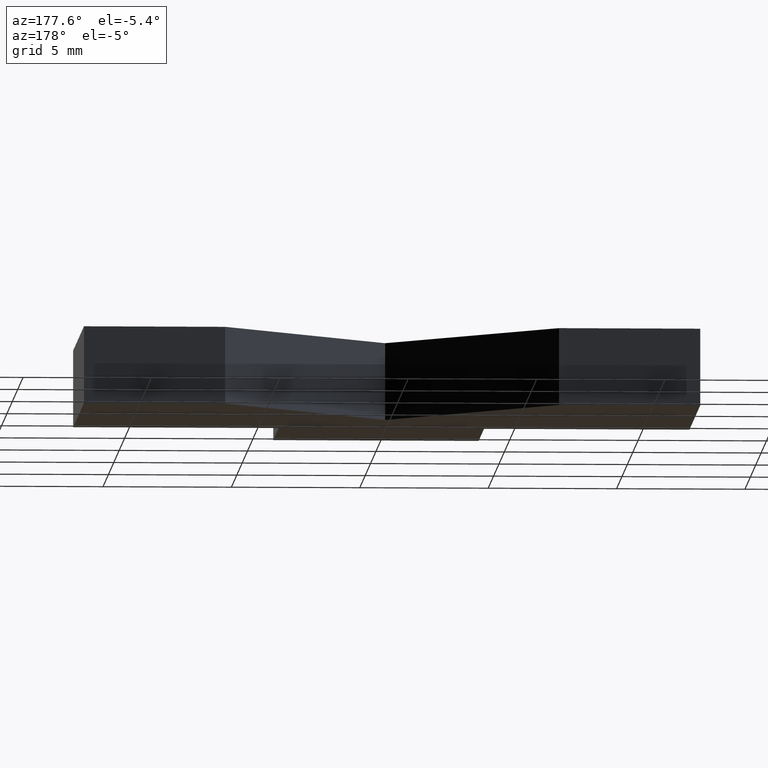
[diagram: clean part render]
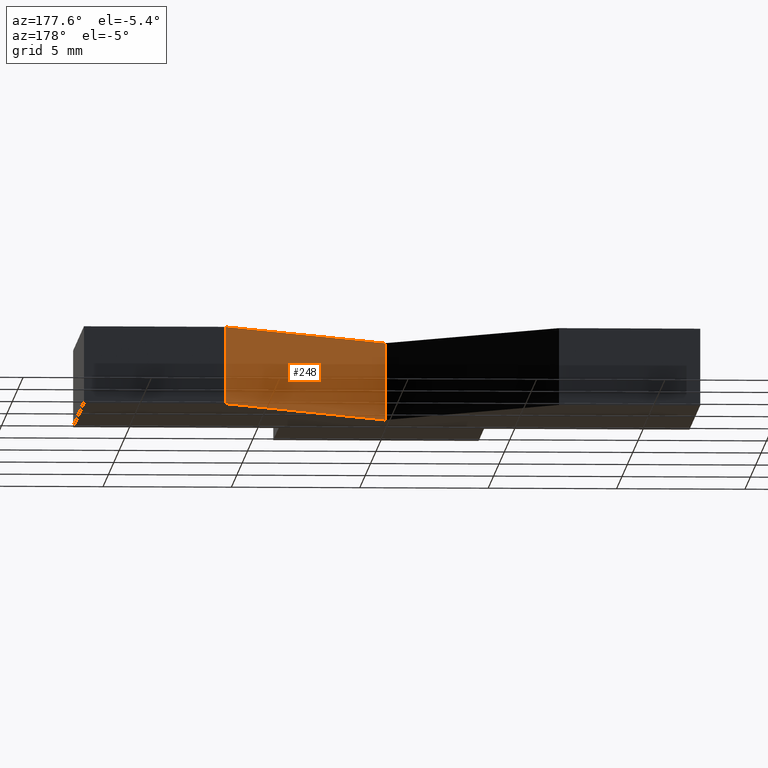
[diagram: same view with one face highlighted and labeled with its STEP entity id]
A machine part, auxiliary view. The second image highlights one B-rep face of the part: STEP entity #248.
In plain terms, the highlighted planar face has unit normal (-0.7071, 0.7071, 0).
Its self-contained STEP definition (entity closure, byte-faithful):
#22=FACE_OUTER_BOUND('',#35,.T.);
#35=EDGE_LOOP('',(#194,#195,#196,#197));
#48=LINE('',#368,#81);
#63=LINE('',#397,#96);
#64=LINE('',#400,#97);
#65=LINE('',#401,#98);
#81=VECTOR('',#301,10.);
#96=VECTOR('',#326,10.);
#97=VECTOR('',#329,10.);
#98=VECTOR('',#330,10.);
#114=VERTEX_POINT('',#365);
#115=VERTEX_POINT('',#367);
#124=VERTEX_POINT('',#395);
#125=VERTEX_POINT('',#399);
#136=EDGE_CURVE('',#115,#114,#48,.T.);
#151=EDGE_CURVE('',#124,#114,#63,.T.);
#152=EDGE_CURVE('',#124,#125,#64,.T.);
#153=EDGE_CURVE('',#125,#115,#65,.T.);
#194=ORIENTED_EDGE('',*,*,#152,.T.);
#195=ORIENTED_EDGE('',*,*,#153,.T.);
#196=ORIENTED_EDGE('',*,*,#136,.T.);
#197=ORIENTED_EDGE('',*,*,#151,.F.);
#235=PLANE('',#284);
#248=ADVANCED_FACE('',(#22),#235,.T.);
#284=AXIS2_PLACEMENT_3D('',#398,#327,#328);
#301=DIRECTION('',(-0.707106781186548,-0.707106781186547,0.));
#326=DIRECTION('',(0.,0.,-1.));
#327=DIRECTION('center_axis',(-0.707106781186547,0.707106781186548,0.));
#328=DIRECTION('ref_axis',(0.,0.,1.));
#329=DIRECTION('',(0.707106781186548,0.707106781186547,0.));
#330=DIRECTION('',(0.,0.,-1.));
#365=CARTESIAN_POINT('',(-1.11022302462516E-15,8.5,-1.5));
#367=CARTESIAN_POINT('',(6.5,15.,-1.5));
#368=CARTESIAN_POINT('',(-1.11022302462516E-15,8.5,-1.5));
#395=CARTESIAN_POINT('',(-1.11022302462516E-15,8.5,1.5));
#397=CARTESIAN_POINT('',(-1.11022302462516E-15,8.5,0.));
#398=CARTESIAN_POINT('Origin',(-1.11022302462516E-15,8.5,0.));
#399=CARTESIAN_POINT('',(6.5,15.,1.5));
#400=CARTESIAN_POINT('',(-1.11022302462516E-15,8.5,1.5));
#401=CARTESIAN_POINT('',(6.5,15.,0.));